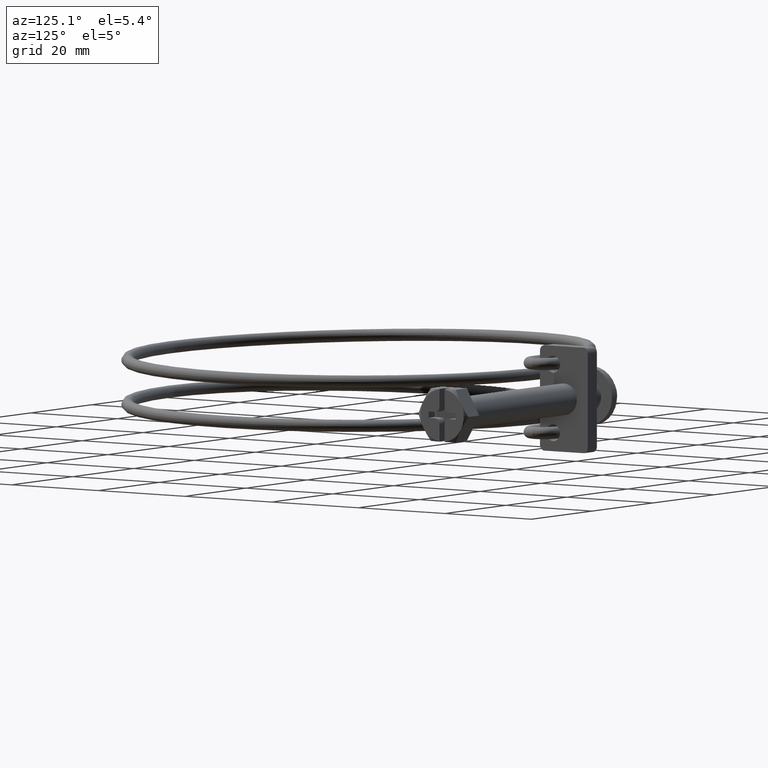
[diagram: clean part render]
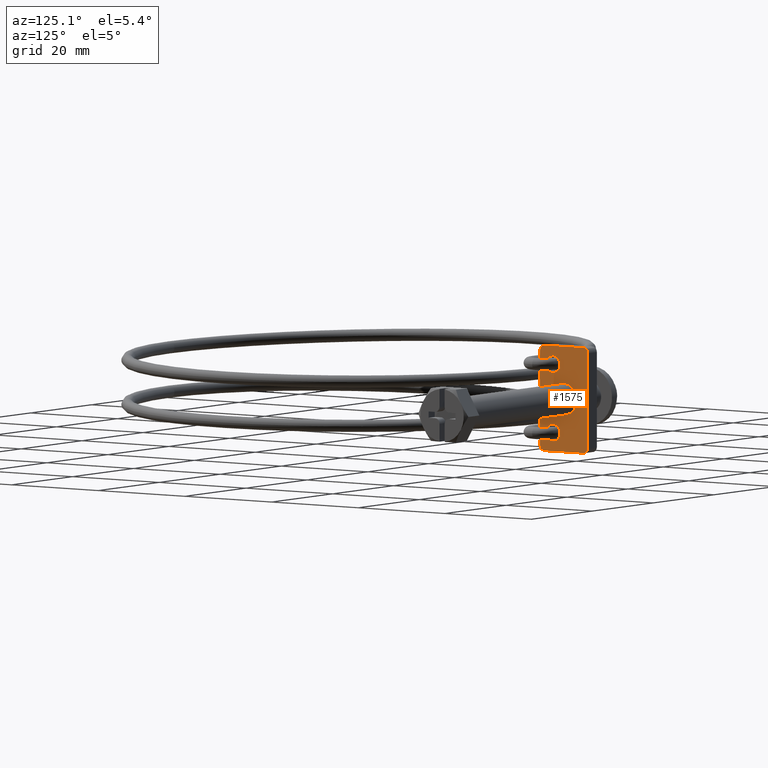
[diagram: same view with one face highlighted and labeled with its STEP entity id]
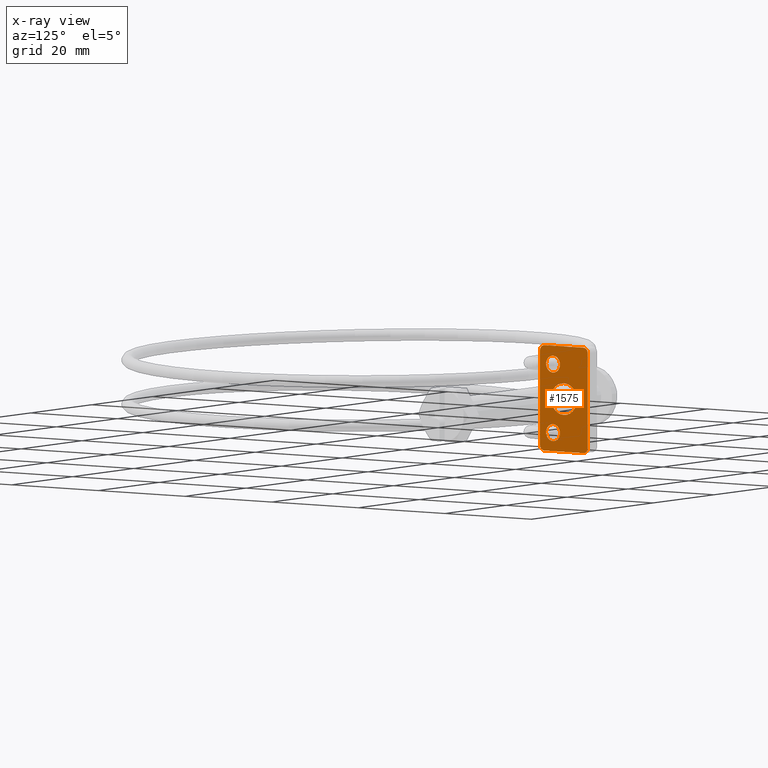
[diagram: x-ray of the same camera — body ghosted, the highlighted face saturated]
A machine part, auxiliary view. The second image highlights one B-rep face of the part: STEP entity #1575.
The next image is the same camera in x-ray: the body ghosted, the highlighted face saturated — about 0% of this face is hidden behind the body in this view.
In plain terms, the highlighted planar face has unit normal (1, 0, 0).
Its self-contained STEP definition (entity closure, byte-faithful):
#13 = EDGE_LOOP ( 'NONE', ( #2009, #2496 ) ) ;
#25 = AXIS2_PLACEMENT_3D ( 'NONE', #3069, #1600, #154 ) ;
#26 = DIRECTION ( 'NONE',  ( 1.000000000000000000, 0.0000000000000000000, 0.0000000000000000000 ) ) ;
#59 = CARTESIAN_POINT ( 'NONE',  ( 1.500000000000000000, 0.0000000000000000000, 0.0000000000000000000 ) ) ;
#115 = CARTESIAN_POINT ( 'NONE',  ( 1.500000000000000000, 0.0000000000000000000, 0.0000000000000000000 ) ) ;
#123 = LINE ( 'NONE', #1544, #2328 ) ;
#154 = DIRECTION ( 'NONE',  ( 0.0000000000000000000, 0.0000000000000000000, -1.000000000000000000 ) ) ;
#165 = VERTEX_POINT ( 'NONE', #846 ) ;
#190 = CARTESIAN_POINT ( 'NONE',  ( 1.500000000000000000, -4.499999999999999100, 10.00000000000000000 ) ) ;
#257 = VERTEX_POINT ( 'NONE', #1900 ) ;
#289 = CARTESIAN_POINT ( 'NONE',  ( 1.500000000000000000, 5.500000000000000000, -9.000000000000003600 ) ) ;
#318 = VECTOR ( 'NONE', #555, 1000.000000000000000 ) ;
#356 = DIRECTION ( 'NONE',  ( 0.0000000000000000000, 0.0000000000000000000, -1.000000000000000000 ) ) ;
#396 = VERTEX_POINT ( 'NONE', #2399 ) ;
#414 = FACE_OUTER_BOUND ( 'NONE', #2222, .T. ) ;
#479 = FACE_BOUND ( 'NONE', #1415, .T. ) ;
#527 = DIRECTION ( 'NONE',  ( -0.0000000000000000000, 1.000000000000000000, -0.0000000000000000000 ) ) ;
#539 = DIRECTION ( 'NONE',  ( 1.000000000000000000, 0.0000000000000000000, 0.0000000000000000000 ) ) ;
#541 = VECTOR ( 'NONE', #527, 1000.000000000000000 ) ;
#555 = DIRECTION ( 'NONE',  ( 0.0000000000000000000, -1.000000000000000000, 0.0000000000000000000 ) ) ;
#568 = CARTESIAN_POINT ( 'NONE',  ( 1.500000000000000000, -2.499999999999999100, 4.899999999999999500 ) ) ;
#573 = CARTESIAN_POINT ( 'NONE',  ( 1.500000000000000000, -4.500000000000000000, 9.000000000000001800 ) ) ;
#658 = CARTESIAN_POINT ( 'NONE',  ( 1.500000000000000000, 4.500000000000000000, 9.000000000000001800 ) ) ;
#699 = EDGE_CURVE ( 'NONE', #3076, #2498, #2117, .T. ) ;
#724 = EDGE_CURVE ( 'NONE', #2098, #2084, #730, .T. ) ;
#730 = CIRCLE ( 'NONE', #2315, 1.599999999999999900 ) ;
#741 = CARTESIAN_POINT ( 'NONE',  ( 1.500000000000000000, -2.499999999999999100, -4.899999999999998600 ) ) ;
#769 = VERTEX_POINT ( 'NONE', #190 ) ;
#774 = VECTOR ( 'NONE', #1321, 1000.000000000000000 ) ;
#790 = ORIENTED_EDGE ( 'NONE', *, *, #1207, .F. ) ;
#808 = DIRECTION ( 'NONE',  ( 0.0000000000000000000, 0.0000000000000000000, -1.000000000000000000 ) ) ;
#846 = CARTESIAN_POINT ( 'NONE',  ( 1.500000000000000000, -5.500000000000000000, -9.000000000000003600 ) ) ;
#856 = ORIENTED_EDGE ( 'NONE', *, *, #2068, .T. ) ;
#887 = AXIS2_PLACEMENT_3D ( 'NONE', #2566, #1090, #2811 ) ;
#899 = DIRECTION ( 'NONE',  ( 0.0000000000000000000, 0.0000000000000000000, -1.000000000000000000 ) ) ;
#907 = CARTESIAN_POINT ( 'NONE',  ( 1.500000000000000000, -2.499999999999999100, 6.500000000000000000 ) ) ;
#1000 = CARTESIAN_POINT ( 'NONE',  ( 1.500000000000000000, -2.499999999999999100, -6.500000000000000000 ) ) ;
#1013 = DIRECTION ( 'NONE',  ( 1.000000000000000000, 0.0000000000000000000, 0.0000000000000000000 ) ) ;
#1031 = LINE ( 'NONE', #1982, #541 ) ;
#1034 = FACE_BOUND ( 'NONE', #13, .T. ) ;
#1037 = AXIS2_PLACEMENT_3D ( 'NONE', #1479, #26, #1726 ) ;
#1076 = ORIENTED_EDGE ( 'NONE', *, *, #2901, .T. ) ;
#1083 = ORIENTED_EDGE ( 'NONE', *, *, #724, .F. ) ;
#1090 = DIRECTION ( 'NONE',  ( 1.000000000000000000, 0.0000000000000000000, 0.0000000000000000000 ) ) ;
#1108 = EDGE_CURVE ( 'NONE', #257, #1621, #2428, .T. ) ;
#1115 = VERTEX_POINT ( 'NONE', #2120 ) ;
#1143 = AXIS2_PLACEMENT_3D ( 'NONE', #2493, #1013, #2739 ) ;
#1168 = DIRECTION ( 'NONE',  ( 0.0000000000000000000, 0.0000000000000000000, -1.000000000000000000 ) ) ;
#1207 = EDGE_CURVE ( 'NONE', #2084, #2098, #2184, .T. ) ;
#1224 = EDGE_LOOP ( 'NONE', ( #1674, #2877 ) ) ;
#1247 = DIRECTION ( 'NONE',  ( 0.0000000000000000000, 0.0000000000000000000, -1.000000000000000000 ) ) ;
#1280 = CARTESIAN_POINT ( 'NONE',  ( 1.500000000000000000, -5.500000000000000000, 9.000000000000001800 ) ) ;
#1321 = DIRECTION ( 'NONE',  ( -0.0000000000000000000, -0.0000000000000000000, 1.000000000000000000 ) ) ;
#1338 = CIRCLE ( 'NONE', #1143, 3.000000000000000400 ) ;
#1389 = DIRECTION ( 'NONE',  ( 1.000000000000000000, 0.0000000000000000000, 0.0000000000000000000 ) ) ;
#1415 = EDGE_LOOP ( 'NONE', ( #1083, #790 ) ) ;
#1479 = CARTESIAN_POINT ( 'NONE',  ( 1.500000000000000000, 4.500000000000000000, -9.000000000000003600 ) ) ;
#1480 = AXIS2_PLACEMENT_3D ( 'NONE', #2861, #1389, #3098 ) ;
#1488 = CARTESIAN_POINT ( 'NONE',  ( 1.500000000000000000, -4.499999999999999100, -10.00000000000000000 ) ) ;
#1528 = ORIENTED_EDGE ( 'NONE', *, *, #2513, .T. ) ;
#1544 = CARTESIAN_POINT ( 'NONE',  ( 1.500000000000000000, -5.500000000000000000, 10.00000000000000000 ) ) ;
#1561 = AXIS2_PLACEMENT_3D ( 'NONE', #115, #1818, #356 ) ;
#1575 = ADVANCED_FACE ( 'NONE', ( #1034, #1693, #479, #414 ), #2734, .T. ) ;
#1578 = CARTESIAN_POINT ( 'NONE',  ( 1.500000000000000000, 5.500000000000000000, 10.00000000000000000 ) ) ;
#1600 = DIRECTION ( 'NONE',  ( 1.000000000000000000, 0.0000000000000000000, 0.0000000000000000000 ) ) ;
#1621 = VERTEX_POINT ( 'NONE', #2260 ) ;
#1624 = LINE ( 'NONE', #2005, #318 ) ;
#1674 = ORIENTED_EDGE ( 'NONE', *, *, #3075, .F. ) ;
#1693 = FACE_BOUND ( 'NONE', #1224, .T. ) ;
#1726 = DIRECTION ( 'NONE',  ( 0.0000000000000000000, 0.0000000000000000000, -1.000000000000000000 ) ) ;
#1800 = VERTEX_POINT ( 'NONE', #289 ) ;
#1818 = DIRECTION ( 'NONE',  ( 1.000000000000000000, 0.0000000000000000000, 0.0000000000000000000 ) ) ;
#1867 = AXIS2_PLACEMENT_3D ( 'NONE', #1000, #2725, #1247 ) ;
#1881 = VERTEX_POINT ( 'NONE', #1488 ) ;
#1900 = CARTESIAN_POINT ( 'NONE',  ( 1.500000000000000000, 5.500000000000000000, 9.000000000000001800 ) ) ;
#1929 = CIRCLE ( 'NONE', #1867, 1.599999999999999900 ) ;
#1942 = ORIENTED_EDGE ( 'NONE', *, *, #2025, .T. ) ;
#1982 = CARTESIAN_POINT ( 'NONE',  ( 1.500000000000000000, 5.500000000000000000, -10.00000000000000000 ) ) ;
#1996 = CIRCLE ( 'NONE', #25, 1.000000000000000900 ) ;
#2004 = CARTESIAN_POINT ( 'NONE',  ( 1.500000000000000000, 4.500000000000000000, -10.00000000000000000 ) ) ;
#2005 = CARTESIAN_POINT ( 'NONE',  ( 1.500000000000000000, 5.500000000000000000, 10.00000000000000000 ) ) ;
#2009 = ORIENTED_EDGE ( 'NONE', *, *, #2494, .F. ) ;
#2025 = EDGE_CURVE ( 'NONE', #1881, #3143, #1031, .T. ) ;
#2066 = VERTEX_POINT ( 'NONE', #1280 ) ;
#2068 = EDGE_CURVE ( 'NONE', #1621, #769, #1624, .T. ) ;
#2084 = VERTEX_POINT ( 'NONE', #2518 ) ;
#2094 = LINE ( 'NONE', #1578, #774 ) ;
#2098 = VERTEX_POINT ( 'NONE', #568 ) ;
#2117 = CIRCLE ( 'NONE', #1480, 1.599999999999999900 ) ;
#2120 = CARTESIAN_POINT ( 'NONE',  ( 1.500000000000000000, 0.0000000000000000000, -3.000000000000000400 ) ) ;
#2184 = CIRCLE ( 'NONE', #887, 1.599999999999999900 ) ;
#2222 = EDGE_LOOP ( 'NONE', ( #2482, #2420, #1942, #2660, #1528, #2583, #856, #1076 ) ) ;
#2244 = DIRECTION ( 'NONE',  ( 0.0000000000000000000, 0.0000000000000000000, -1.000000000000000000 ) ) ;
#2246 = AXIS2_PLACEMENT_3D ( 'NONE', #573, #2278, #808 ) ;
#2260 = CARTESIAN_POINT ( 'NONE',  ( 1.500000000000000000, 4.500000000000000000, 10.00000000000000000 ) ) ;
#2278 = DIRECTION ( 'NONE',  ( 1.000000000000000000, 0.0000000000000000000, 0.0000000000000000000 ) ) ;
#2315 = AXIS2_PLACEMENT_3D ( 'NONE', #907, #2630, #1168 ) ;
#2325 = CIRCLE ( 'NONE', #2246, 1.000000000000000900 ) ;
#2328 = VECTOR ( 'NONE', #3013, 1000.000000000000000 ) ;
#2368 = DIRECTION ( 'NONE',  ( 1.000000000000000000, 0.0000000000000000000, 0.0000000000000000000 ) ) ;
#2378 = EDGE_CURVE ( 'NONE', #396, #1115, #1338, .T. ) ;
#2399 = CARTESIAN_POINT ( 'NONE',  ( 1.500000000000000000, 3.673940397442060400E-016, 3.000000000000000400 ) ) ;
#2420 = ORIENTED_EDGE ( 'NONE', *, *, #2549, .T. ) ;
#2428 = CIRCLE ( 'NONE', #2750, 1.000000000000000900 ) ;
#2442 = EDGE_CURVE ( 'NONE', #2066, #165, #123, .T. ) ;
#2482 = ORIENTED_EDGE ( 'NONE', *, *, #2442, .T. ) ;
#2493 = CARTESIAN_POINT ( 'NONE',  ( 1.500000000000000000, 0.0000000000000000000, 0.0000000000000000000 ) ) ;
#2494 = EDGE_CURVE ( 'NONE', #1115, #396, #2743, .T. ) ;
#2496 = ORIENTED_EDGE ( 'NONE', *, *, #2378, .F. ) ;
#2498 = VERTEX_POINT ( 'NONE', #2554 ) ;
#2513 = EDGE_CURVE ( 'NONE', #1800, #257, #2094, .T. ) ;
#2518 = CARTESIAN_POINT ( 'NONE',  ( 1.500000000000000000, -2.499999999999999100, 8.099999999999999600 ) ) ;
#2549 = EDGE_CURVE ( 'NONE', #165, #1881, #1996, .T. ) ;
#2554 = CARTESIAN_POINT ( 'NONE',  ( 1.500000000000000000, -2.499999999999999100, -8.099999999999999600 ) ) ;
#2566 = CARTESIAN_POINT ( 'NONE',  ( 1.500000000000000000, -2.499999999999999100, 6.500000000000000000 ) ) ;
#2583 = ORIENTED_EDGE ( 'NONE', *, *, #1108, .T. ) ;
#2630 = DIRECTION ( 'NONE',  ( 1.000000000000000000, 0.0000000000000000000, 0.0000000000000000000 ) ) ;
#2660 = ORIENTED_EDGE ( 'NONE', *, *, #3033, .T. ) ;
#2666 = CIRCLE ( 'NONE', #1037, 0.9999999999999991100 ) ;
#2725 = DIRECTION ( 'NONE',  ( 1.000000000000000000, 0.0000000000000000000, 0.0000000000000000000 ) ) ;
#2734 = PLANE ( 'NONE',  #2957 ) ;
#2739 = DIRECTION ( 'NONE',  ( 0.0000000000000000000, 0.0000000000000000000, -1.000000000000000000 ) ) ;
#2743 = CIRCLE ( 'NONE', #1561, 3.000000000000000400 ) ;
#2750 = AXIS2_PLACEMENT_3D ( 'NONE', #658, #2368, #899 ) ;
#2811 = DIRECTION ( 'NONE',  ( 0.0000000000000000000, 0.0000000000000000000, -1.000000000000000000 ) ) ;
#2861 = CARTESIAN_POINT ( 'NONE',  ( 1.500000000000000000, -2.499999999999999100, -6.500000000000000000 ) ) ;
#2877 = ORIENTED_EDGE ( 'NONE', *, *, #699, .F. ) ;
#2901 = EDGE_CURVE ( 'NONE', #769, #2066, #2325, .T. ) ;
#2957 = AXIS2_PLACEMENT_3D ( 'NONE', #59, #539, #2244 ) ;
#3013 = DIRECTION ( 'NONE',  ( 0.0000000000000000000, 0.0000000000000000000, -1.000000000000000000 ) ) ;
#3033 = EDGE_CURVE ( 'NONE', #3143, #1800, #2666, .T. ) ;
#3069 = CARTESIAN_POINT ( 'NONE',  ( 1.500000000000000000, -4.499999999999999100, -9.000000000000001800 ) ) ;
#3075 = EDGE_CURVE ( 'NONE', #2498, #3076, #1929, .T. ) ;
#3076 = VERTEX_POINT ( 'NONE', #741 ) ;
#3098 = DIRECTION ( 'NONE',  ( 0.0000000000000000000, 0.0000000000000000000, -1.000000000000000000 ) ) ;
#3143 = VERTEX_POINT ( 'NONE', #2004 ) ;